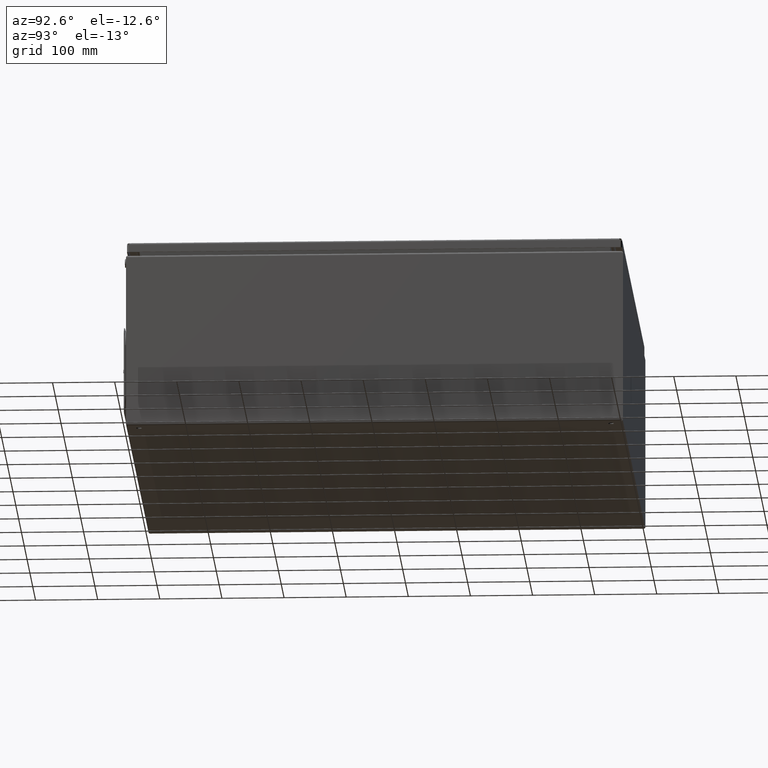
[diagram: clean part render]
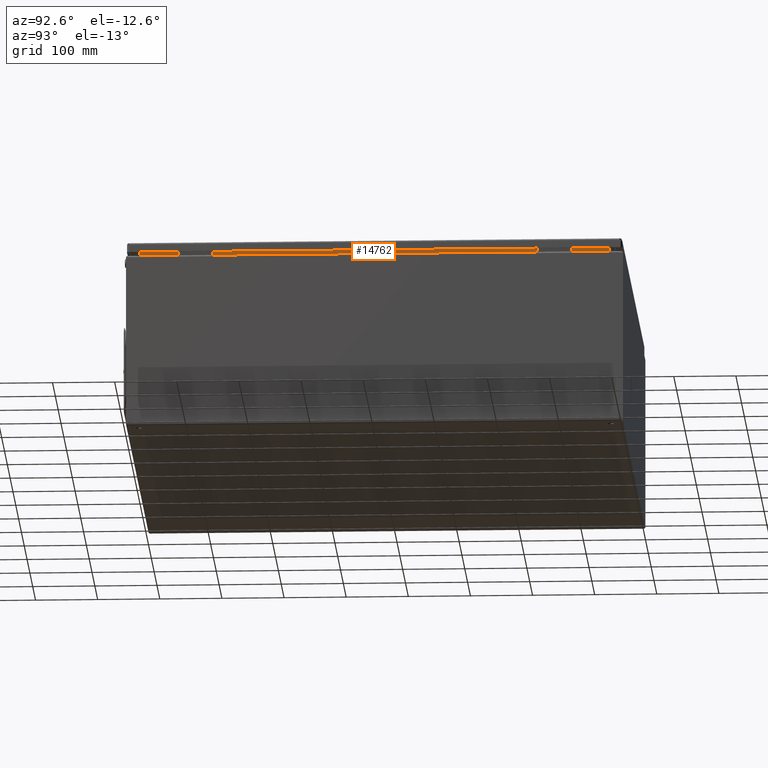
[diagram: same view with one face highlighted and labeled with its STEP entity id]
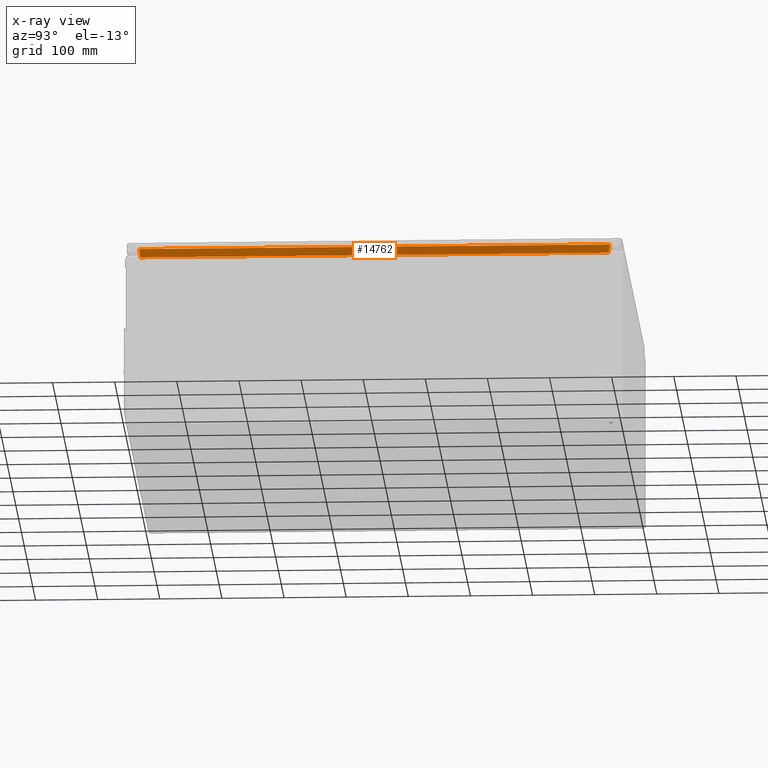
[diagram: x-ray of the same camera — body ghosted, the highlighted face saturated]
A machine part, auxiliary view. The second image highlights one B-rep face of the part: STEP entity #14762.
The next image is the same camera in x-ray: the body ghosted, the highlighted face saturated — about 0% of this face is hidden behind the body in this view.
In plain terms, the highlighted planar face has unit normal (-0.9903, 0, 0.1392).
Its self-contained STEP definition (entity closure, byte-faithful):
#2221 = CARTESIAN_POINT ( 'NONE',  ( 377.5157031185519300, -377.7096941927761100, 281.7087596514591600 ) ) ;
#2271 = DIRECTION ( 'NONE',  ( 0.0000000000000000000, 1.000000000000000000, 0.0000000000000000000 ) ) ;
#2272 = VECTOR ( 'NONE', #2271, 1000.000000000000000 ) ;
#2273 = CARTESIAN_POINT ( 'NONE',  ( 377.5157031185519300, -398.4992928932271100, 281.7087596514591600 ) ) ;
#2278 = CARTESIAN_POINT ( 'NONE',  ( 377.5157031185489700, 376.2096941927821400, 281.7087596514595600 ) ) ;
#2281 = LINE ( 'NONE', #2273, #2272 ) ;
#3934 = DIRECTION ( 'NONE',  ( -0.1378186779085020500, -0.1391731009600817300, -0.9806308479691567800 ) ) ;
#3935 = VECTOR ( 'NONE', #3934, 1000.000000000000000 ) ;
#3936 = CARTESIAN_POINT ( 'NONE',  ( 377.3073494299886200, 375.9992928932379100, 280.2262461243300900 ) ) ;
#3937 = LINE ( 'NONE', #3936, #3935 ) ;
#3938 = CARTESIAN_POINT ( 'NONE',  ( 379.3810286342965700, 378.0933513303037300, 294.9812403485788600 ) ) ;
#3944 = DIRECTION ( 'NONE',  ( 0.1391731009600697100, 0.0000000000000000000, 0.9902680687415698100 ) ) ;
#3945 = DIRECTION ( 'NONE',  ( -0.9902680687415698100, 0.0000000000000000000, 0.1391731009600697100 ) ) ;
#3946 = CARTESIAN_POINT ( 'NONE',  ( 377.0354021031136000, -398.4992928932271100, 278.2912403485788700 ) ) ;
#3947 = AXIS2_PLACEMENT_3D ( 'NONE', #3946, #3945, #3944 ) ;
#3948 = PLANE ( 'NONE',  #3947 ) ;
#3949 = FACE_OUTER_BOUND ( 'NONE', #14763, .T. ) ;
#3977 = CARTESIAN_POINT ( 'NONE',  ( 379.3810286342991800, -379.5933513302974800, 294.9812403485787500 ) ) ;
#4074 = DIRECTION ( 'NONE',  ( -0.1378186779085038800, 0.1391731009600605300, -0.9806308479691595600 ) ) ;
#4075 = VECTOR ( 'NONE', #4074, 1000.000000000000000 ) ;
#4076 = CARTESIAN_POINT ( 'NONE',  ( 377.4434632005017500, -377.6367443316925700, 281.1947459258175300 ) ) ;
#4077 = LINE ( 'NONE', #4076, #4075 ) ;
#4088 = DIRECTION ( 'NONE',  ( 0.0000000000000000000, 1.000000000000000000, 0.0000000000000000000 ) ) ;
#4089 = VECTOR ( 'NONE', #4088, 1000.000000000000000 ) ;
#4090 = CARTESIAN_POINT ( 'NONE',  ( 379.3810286342965700, -398.4992928932271100, 294.9812403485788600 ) ) ;
#4091 = LINE ( 'NONE', #4090, #4089 ) ;
#13496 = VERTEX_POINT ( 'NONE', #2221 ) ;
#13509 = VERTEX_POINT ( 'NONE', #2278 ) ;
#13511 = EDGE_CURVE ( 'NONE', #13496, #13509, #2281, .T. ) ;
#14762 = ADVANCED_FACE ( 'NONE', ( #3949 ), #3948, .F. ) ;
#14763 = EDGE_LOOP ( 'NONE', ( #14869, #14871, #14873, #14875 ) ) ;
#14767 = VERTEX_POINT ( 'NONE', #3938 ) ;
#14769 = EDGE_CURVE ( 'NONE', #14767, #13509, #3937, .T. ) ;
#14781 = VERTEX_POINT ( 'NONE', #3977 ) ;
#14869 = ORIENTED_EDGE ( 'NONE', *, *, #14895, .F. ) ;
#14871 = ORIENTED_EDGE ( 'NONE', *, *, #14912, .T. ) ;
#14873 = ORIENTED_EDGE ( 'NONE', *, *, #13511, .T. ) ;
#14875 = ORIENTED_EDGE ( 'NONE', *, *, #14769, .F. ) ;
#14895 = EDGE_CURVE ( 'NONE', #14781, #14767, #4091, .T. ) ;
#14912 = EDGE_CURVE ( 'NONE', #14781, #13496, #4077, .T. ) ;